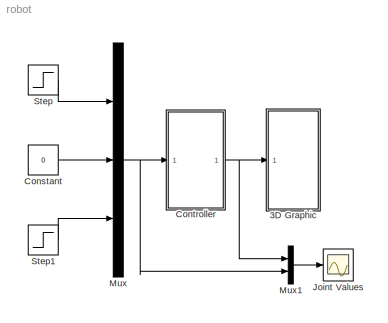
MODEL robot
KIND model
CONFIG InitFcn = Factory
CONFIG PreLoadFcn = Factory
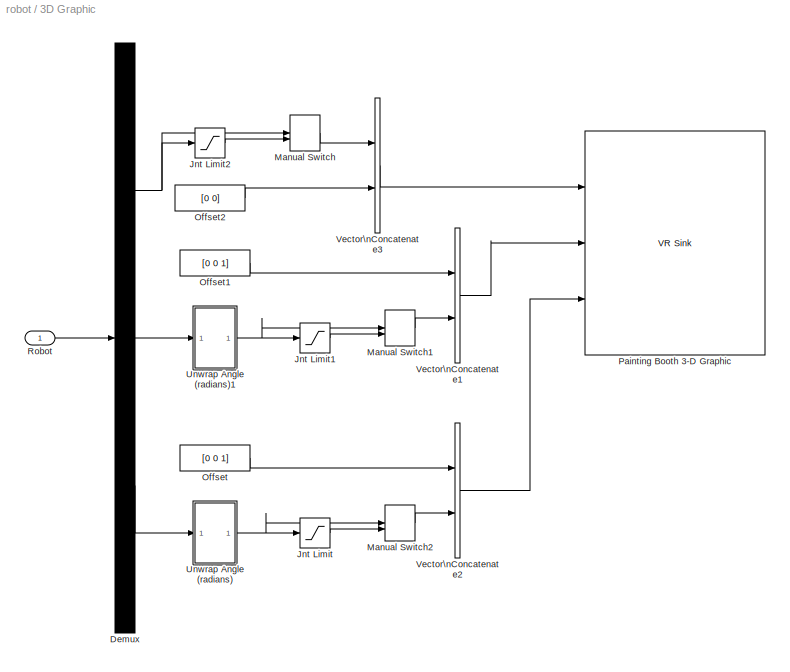
BLOCK [SubSystem] 3D Graphic
  Ports = [1]
  RequestExecContextInheritance = off
  SID = 247
  Variant = off
BLOCK [Demux] 3D Graphic/Demux
  DisplayOption = bar
  Outputs = 3
  Ports = [1, 3]
  SID = 396
BLOCK [Saturate] 3D Graphic/Jnt Limit
  InputPortMap = u0
  LowerLimit = -4*pi/5
  Ports = [1, 1]
  SID = 217
  UpperLimit = 4*pi/5
BLOCK [Saturate] 3D Graphic/Jnt Limit1
  InputPortMap = u0
  LowerLimit = -pi
  Ports = [1, 1]
  SID = 196
  UpperLimit = pi/2
BLOCK [Saturate] 3D Graphic/Jnt Limit2
  InputPortMap = u0
  LowerLimit = -.5
  Ports = [1, 1]
  SID = 187
  UpperLimit = 4.5
BLOCK [ManualSwitch] 3D Graphic/Manual Switch
  CurrentSetting = 0
  SID = 531
BLOCK [ManualSwitch] 3D Graphic/Manual Switch1
  CurrentSetting = 0
  SID = 532
BLOCK [ManualSwitch] 3D Graphic/Manual Switch2
  SID = 533
BLOCK [Constant] 3D Graphic/Offset
  SID = 219
  Value = [0 0 1]
BLOCK [Constant] 3D Graphic/Offset1
  SID = 197
  Value = [0 0 1]
BLOCK [Constant] 3D Graphic/Offset2
  SID = 188
  Value = [0 0]
BLOCK [Reference] 3D Graphic/Painting Booth 3-D Graphic  REF=vrlib/VR Sink
  AllowVariableSize = off
  AutoView = on
  FieldsWritten = Q0.translation.3.1.1.double#Q1.rotation.4.1.1.double#Q2.rotation.4.1.1.double
  InstantiateOnLoad = on
  Ports = [3]
  RemoteChange = off
  RemoteView = off
  SID = 425
  SampleTime = -1
  SourceBlock = vrlib/VR Sink
  SourceType = Virtual Reality Sink
  VideoDimensions = []
  ViewEnable = on
  WorldFileName = ROBOT.WRL
BLOCK [Inport] 3D Graphic/Robot
  IconDisplay = Port number
  SID = 249
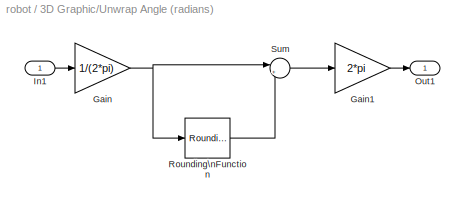
BLOCK [SubSystem] 3D Graphic/Unwrap Angle (radians)
  Ports = [1, 1]
  RequestExecContextInheritance = off
  SID = 222
  Variant = off
BLOCK [Gain] 3D Graphic/Unwrap Angle (radians)/Gain
  Gain = 1/(2*pi)
  OutDataTypeStr = Inherit: Inherit via internal rule
  ParamDataTypeStr = Inherit: Inherit via internal rule
  SID = 224
  SaturateOnIntegerOverflow = off
BLOCK [Gain] 3D Graphic/Unwrap Angle (radians)/Gain1
  Gain = 2*pi
  OutDataTypeStr = Inherit: Inherit via internal rule
  ParamDataTypeStr = Inherit: Inherit via internal rule
  SID = 225
  SaturateOnIntegerOverflow = off
BLOCK [Inport] 3D Graphic/Unwrap Angle (radians)/In1
  IconDisplay = Port number
  SID = 223
BLOCK [Outport] 3D Graphic/Unwrap Angle (radians)/Out1
  IconDisplay = Port number
  SID = 228
BLOCK [Rounding] 3D Graphic/Unwrap Angle (radians)/Rounding\nFunction
  Operator = round
  SID = 226
BLOCK [Sum] 3D Graphic/Unwrap Angle (radians)/Sum
  IconShape = round
  InputSameDT = off
  Inputs = |+-
  OutDataTypeStr = Inherit: Inherit via internal rule
  Ports = [2, 1]
  SID = 227
  SaturateOnIntegerOverflow = off
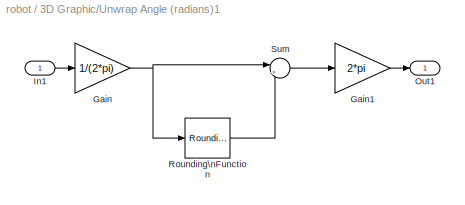
BLOCK [SubSystem] 3D Graphic/Unwrap Angle (radians)1
  Ports = [1, 1]
  RequestExecContextInheritance = off
  SID = 210
  Variant = off
BLOCK [Gain] 3D Graphic/Unwrap Angle (radians)1/Gain
  Gain = 1/(2*pi)
  OutDataTypeStr = Inherit: Inherit via internal rule
  ParamDataTypeStr = Inherit: Inherit via internal rule
  SID = 206
  SaturateOnIntegerOverflow = off
BLOCK [Gain] 3D Graphic/Unwrap Angle (radians)1/Gain1
  Gain = 2*pi
  OutDataTypeStr = Inherit: Inherit via internal rule
  ParamDataTypeStr = Inherit: Inherit via internal rule
  SID = 207
  SaturateOnIntegerOverflow = off
BLOCK [Inport] 3D Graphic/Unwrap Angle (radians)1/In1
  IconDisplay = Port number
  SID = 211
BLOCK [Outport] 3D Graphic/Unwrap Angle (radians)1/Out1
  IconDisplay = Port number
  SID = 212
BLOCK [Rounding] 3D Graphic/Unwrap Angle (radians)1/Rounding\nFunction
  Operator = round
  SID = 208
BLOCK [Sum] 3D Graphic/Unwrap Angle (radians)1/Sum
  IconShape = round
  InputSameDT = off
  Inputs = |+-
  OutDataTypeStr = Inherit: Inherit via internal rule
  Ports = [2, 1]
  SID = 209
  SaturateOnIntegerOverflow = off
BLOCK [Concatenate] 3D Graphic/Vector\nConcatenate1
  Ports = [2, 1]
  SID = 201
BLOCK [Concatenate] 3D Graphic/Vector\nConcatenate2
  Ports = [2, 1]
  SID = 229
BLOCK [Concatenate] 3D Graphic/Vector\nConcatenate3
  Ports = [2, 1]
  SID = 192
BLOCK [Constant] Constant
  SID = 800
  Value = 0
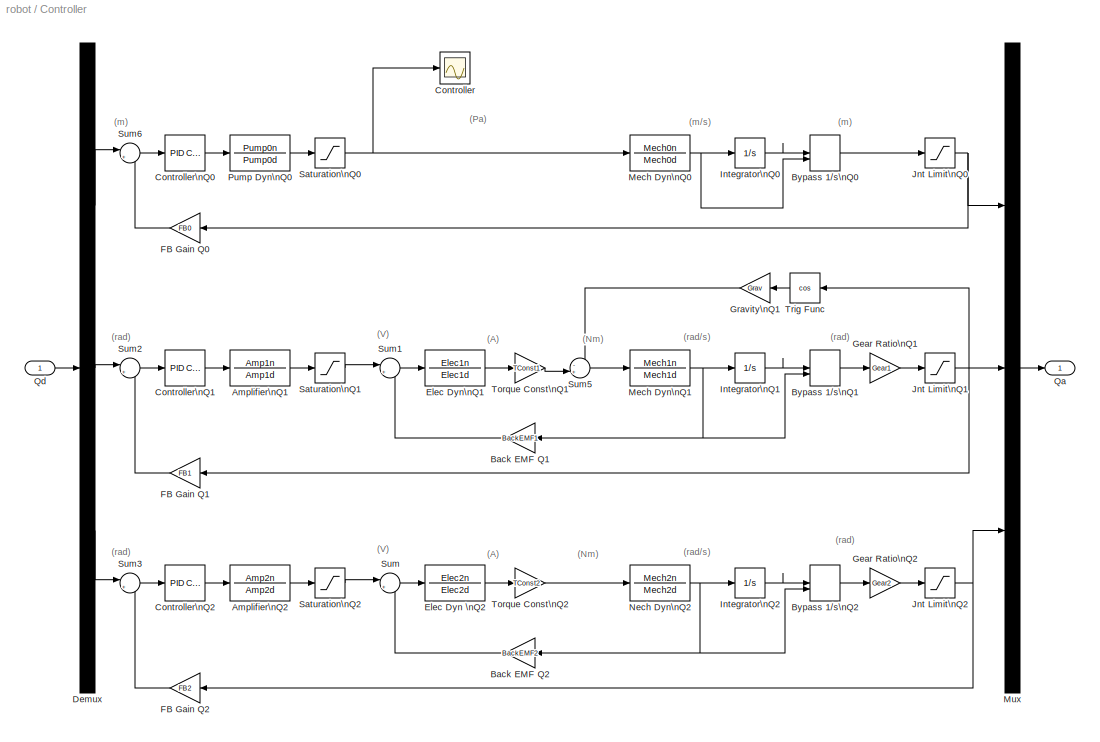
BLOCK [SubSystem] Controller
  Ports = [1, 1]
  RequestExecContextInheritance = off
  SID = 732
  Variant = off
BLOCK [TransferFcn] Controller/Amplifier\nQ1
  Denominator = Amp1d
  Numerator = Amp1n
  SID = 734
BLOCK [TransferFcn] Controller/Amplifier\nQ2
  Denominator = Amp2d
  Numerator = Amp2n
  SID = 735
BLOCK [Gain] Controller/Back EMF Q1
  Gain = BackEMF1
  OutDataTypeStr = Inherit: Inherit via internal rule
  ParamDataTypeStr = Inherit: Inherit via internal rule
  SID = 736
  SaturateOnIntegerOverflow = off
BLOCK [Gain] Controller/Back EMF Q2
  Gain = BackEMF2
  OutDataTypeStr = Inherit: Inherit via internal rule
  ParamDataTypeStr = Inherit: Inherit via internal rule
  SID = 737
  SaturateOnIntegerOverflow = off
BLOCK [ManualSwitch] Controller/Bypass 1//s\nQ0
  CurrentSetting = 0
  SID = 738
BLOCK [ManualSwitch] Controller/Bypass 1//s\nQ1
  CurrentSetting = 0
  SID = 739
BLOCK [ManualSwitch] Controller/Bypass 1//s\nQ2
  CurrentSetting = 0
  SID = 740
BLOCK [Scope] Controller/Controller
  NumInputPorts = 1
  Ports = [1]
  SID = 795
  ScopeSpecificationString = Simulink.scopes.TimeScopeBlockCfg('CurrentConfiguration', extmgr.ConfigurationSet(extmgr.Configuration('Core','General UI',true),extmgr.Configuration('Core','Source UI',true),extmgr.Configuration('Sources','WiredSimulink',true,'DataLoggingLimitDataPoints',true,'DataLoggingSaveFormat','Array','DataLoggingDecimation','1','DataLoggingDecimateData',true),extmgr.Configuration('Visuals','Time Domain',tr...<+1656ch>
BLOCK [Reference] Controller/Controller\nQ0  REF=simulink/Continuous/PID Controller
  AntiWindupMode = none
  Controller = PID
  ControllerParametersSource = internal
  D = 4.63806339848765e-06
  DGainOutDataTypeStr = Inherit: Inherit via internal rule
  DOutDataTypeStr = Inherit: Inherit via internal rule
  DOutMax = []
  DOutMin = []
  DParamDataTypeStr = Inherit: Inherit via internal rule
  DParamMax = []
  DParamMin = []
  DProdOutDataTypeStr = Inherit: Inherit via internal rule
  DifferentiatorICPrevScaledInput = 0
  DifferentiatorOutDataTypeStr = Inherit: Inherit via internal rule
  DifferentiatorOutMax = []
  DifferentiatorOutMin = []
  ExternalReset = none
  FilterContinuousStateAttributes = ''
  FilterMethod = Forward Euler
  FilterOutDataTypeStr = Inherit: Inherit via internal rule
  FilterOutMax = []
  FilterOutMin = []
  FilterRTWStateStorageClass = Auto
  FilterStateMustResolveToSignalObject = off
  Form = Parallel
  I = 5.21868445612407e-09
  IGainOutDataTypeStr = Inherit: Inherit via internal rule
  IOutDataTypeStr = Inherit: Inherit via internal rule
  IOutMax = []
  IOutMin = []
  IParamDataTypeStr = Inherit: Inherit via internal rule
  IParamMax = []
  IParamMin = []
  IProdOutDataTypeStr = Inherit: Inherit via internal rule
  IgnoreLimit = off
  InitialConditionForFilter = 0
  InitialConditionForIntegrator = 0
  InitialConditionSource = internal
  IntegratorContinuousStateAttributes = ''
  IntegratorMethod = Forward Euler
  IntegratorOutDataTypeStr = Inherit: Inherit via internal rule
  IntegratorOutMax = []
  IntegratorOutMin = []
  IntegratorRTWStateStorageClass = Auto
  IntegratorStateMustResolveToSignalObject = off
  Kb = 1
  KbOutDataTypeStr = Inherit: Inherit via internal rule
  KbOutMax = []
  KbOutMin = []
  KbParamDataTypeStr = Inherit: Inherit via internal rule
  KbParamMax = []
  KbParamMin = []
  Kt = 1
  KtOutDataTypeStr = Inherit: Inherit via internal rule
  KtOutMax = []
  KtOutMin = []
  KtParamDataTypeStr = Inherit: Inherit via internal rule
  KtParamMax = []
  KtParamMin = []
  LimitOutput = off
  LinearizeAsGain = on
  LockScale = off
  LowerSaturationLimit = -inf
  N = 0.965872815009672
  NGainOutDataTypeStr = Inherit: Inherit via internal rule
  NOutDataTypeStr = Inherit: Inherit via internal rule
  NOutMax = []
  NOutMin = []
  NParamDataTypeStr = Inherit: Inherit via internal rule
  NParamMax = []
  NParamMin = []
  NProdOutDataTypeStr = Inherit: Inherit via internal rule
  P = 3.26939218896731e-07
  PGainOutDataTypeStr = Inherit: Inherit via internal rule
  POutDataTypeStr = Inherit: Inherit via internal rule
  POutMax = []
  POutMin = []
  PParamDataTypeStr = Inherit: Inherit via internal rule
  PParamMax = []
  PParamMin = []
  PProdOutDataTypeStr = Inherit: Inherit via internal rule
  Ports = [1, 1]
  RndMeth = Floor
  SID = 741
  SampleTime = -1
  SaturateOnIntegerOverflow = off
  SaturationOutDataTypeStr = Inherit: Same as input
  SaturationOutMax = []
  SaturationOutMin = []
  SourceBlock = simulink/Continuous/PID Controller
  SourceType = PID 1dof
  SumAccumDataTypeStr = Inherit: Inherit via internal rule
  SumDAccumDataTypeStr = Inherit: Inherit via internal rule
  SumDOutDataTypeStr = Inherit: Inherit via internal rule
  SumDOutMax = []
  SumDOutMin = []
  SumI1AccumDataTypeStr = Inherit: Inherit via internal rule
  SumI1OutDataTypeStr = Inherit: Inherit via internal rule
  SumI1OutMax = []
  SumI1OutMin = []
  SumI2AccumDataTypeStr = Inherit: Inherit via internal rule
  SumI2OutDataTypeStr = Inherit: Inherit via internal rule
  SumI2OutMax = []
  SumI2OutMin = []
  SumI3AccumDataTypeStr = Inherit: Inherit via internal rule
  SumI3OutDataTypeStr = Inherit: Inherit via internal rule
  SumI3OutMax = []
  SumI3OutMin = []
  SumOutDataTypeStr = Inherit: Inherit via internal rule
  SumOutMax = []
  SumOutMin = []
  TimeDomain = Continuous-time
  TrackingMode = off
  UpperSaturationLimit = inf
  UseFilter = on
  ZeroCross = on
BLOCK [Reference] Controller/Controller\nQ1  REF=simulink/Continuous/PID Controller
  AntiWindupMode = none
  Controller = PID
  ControllerParametersSource = internal
  D = 0.000793238570249178
  DGainOutDataTypeStr = Inherit: Inherit via internal rule
  DOutDataTypeStr = Inherit: Inherit via internal rule
  DOutMax = []
  DOutMin = []
  DParamDataTypeStr = Inherit: Inherit via internal rule
  DParamMax = []
  DParamMin = []
  DProdOutDataTypeStr = Inherit: Inherit via internal rule
  DifferentiatorICPrevScaledInput = 0
  DifferentiatorOutDataTypeStr = Inherit: Inherit via internal rule
  DifferentiatorOutMax = []
  DifferentiatorOutMin = []
  ExternalReset = none
  FilterContinuousStateAttributes = ''
  FilterMethod = Forward Euler
  FilterOutDataTypeStr = Inherit: Inherit via internal rule
  FilterOutMax = []
  FilterOutMin = []
  FilterRTWStateStorageClass = Auto
  FilterStateMustResolveToSignalObject = off
  Form = Parallel
  I = 0.0368251982616527
  IGainOutDataTypeStr = Inherit: Inherit via internal rule
  IOutDataTypeStr = Inherit: Inherit via internal rule
  IOutMax = []
  IOutMin = []
  IParamDataTypeStr = Inherit: Inherit via internal rule
  IParamMax = []
  IParamMin = []
  IProdOutDataTypeStr = Inherit: Inherit via internal rule
  IgnoreLimit = off
  InitialConditionForFilter = 0
  InitialConditionForIntegrator = 0
  InitialConditionSource = internal
  IntegratorContinuousStateAttributes = ''
  IntegratorMethod = Forward Euler
  IntegratorOutDataTypeStr = Inherit: Inherit via internal rule
  IntegratorOutMax = []
  IntegratorOutMin = []
  IntegratorRTWStateStorageClass = Auto
  IntegratorStateMustResolveToSignalObject = off
  Kb = 1
  KbOutDataTypeStr = Inherit: Inherit via internal rule
  KbOutMax = []
  KbOutMin = []
  KbParamDataTypeStr = Inherit: Inherit via internal rule
  KbParamMax = []
  KbParamMin = []
  Kt = 1
  KtOutDataTypeStr = Inherit: Inherit via internal rule
  KtOutMax = []
  KtOutMin = []
  KtParamDataTypeStr = Inherit: Inherit via internal rule
  KtParamMax = []
  KtParamMin = []
  LimitOutput = off
  LinearizeAsGain = on
  LockScale = off
  LowerSaturationLimit = -inf
  N = 63.1412259156694
  NGainOutDataTypeStr = Inherit: Inherit via internal rule
  NOutDataTypeStr = Inherit: Inherit via internal rule
  NOutMax = []
  NOutMin = []
  NParamDataTypeStr = Inherit: Inherit via internal rule
  NParamMax = []
  NParamMin = []
  NProdOutDataTypeStr = Inherit: Inherit via internal rule
  P = 0.0236550094964432
  PGainOutDataTypeStr = Inherit: Inherit via internal rule
  POutDataTypeStr = Inherit: Inherit via internal rule
  POutMax = []
  POutMin = []
  PParamDataTypeStr = Inherit: Inherit via internal rule
  PParamMax = []
  PParamMin = []
  PProdOutDataTypeStr = Inherit: Inherit via internal rule
  Ports = [1, 1]
  RndMeth = Floor
  SID = 742
  SampleTime = -1
  SaturateOnIntegerOverflow = off
  SaturationOutDataTypeStr = Inherit: Same as input
  SaturationOutMax = []
  SaturationOutMin = []
  SourceBlock = simulink/Continuous/PID Controller
  SourceType = PID 1dof
  SumAccumDataTypeStr = Inherit: Inherit via internal rule
  SumDAccumDataTypeStr = Inherit: Inherit via internal rule
  SumDOutDataTypeStr = Inherit: Inherit via internal rule
  SumDOutMax = []
  SumDOutMin = []
  SumI1AccumDataTypeStr = Inherit: Inherit via internal rule
  SumI1OutDataTypeStr = Inherit: Inherit via internal rule
  SumI1OutMax = []
  SumI1OutMin = []
  SumI2AccumDataTypeStr = Inherit: Inherit via internal rule
  SumI2OutDataTypeStr = Inherit: Inherit via internal rule
  SumI2OutMax = []
  SumI2OutMin = []
  SumI3AccumDataTypeStr = Inherit: Inherit via internal rule
  SumI3OutDataTypeStr = Inherit: Inherit via internal rule
  SumI3OutMax = []
  SumI3OutMin = []
  SumOutDataTypeStr = Inherit: Inherit via internal rule
  SumOutMax = []
  SumOutMin = []
  TimeDomain = Continuous-time
  TrackingMode = off
  UpperSaturationLimit = inf
  UseFilter = on
  ZeroCross = on
BLOCK [Reference] Controller/Controller\nQ2  REF=simulink/Continuous/PID Controller
  AntiWindupMode = none
  Controller = PID
  ControllerParametersSource = internal
  D = 0.00389491872834826
  DGainOutDataTypeStr = Inherit: Inherit via internal rule
  DOutDataTypeStr = Inherit: Inherit via internal rule
  DOutMax = []
  DOutMin = []
  DParamDataTypeStr = Inherit: Inherit via internal rule
  DParamMax = []
  DParamMin = []
  DProdOutDataTypeStr = Inherit: Inherit via internal rule
  DifferentiatorICPrevScaledInput = 0
  DifferentiatorOutDataTypeStr = Inherit: Inherit via internal rule
  DifferentiatorOutMax = []
  DifferentiatorOutMin = []
  ExternalReset = none
  FilterContinuousStateAttributes = ''
  FilterMethod = Forward Euler
  FilterOutDataTypeStr = Inherit: Inherit via internal rule
  FilterOutMax = []
  FilterOutMin = []
  FilterRTWStateStorageClass = Auto
  FilterStateMustResolveToSignalObject = off
  Form = Parallel
  I = 6923.75827864066
  IGainOutDataTypeStr = Inherit: Inherit via internal rule
  IOutDataTypeStr = Inherit: Inherit via internal rule
  IOutMax = []
  IOutMin = []
  IParamDataTypeStr = Inherit: Inherit via internal rule
  IParamMax = []
  IParamMin = []
  IProdOutDataTypeStr = Inherit: Inherit via internal rule
  IgnoreLimit = off
  InitialConditionForFilter = 0
  InitialConditionForIntegrator = 0
  InitialConditionSource = internal
  IntegratorContinuousStateAttributes = ''
  IntegratorMethod = Forward Euler
  IntegratorOutDataTypeStr = Inherit: Inherit via internal rule
  IntegratorOutMax = []
  IntegratorOutMin = []
  IntegratorRTWStateStorageClass = Auto
  IntegratorStateMustResolveToSignalObject = off
  Kb = 1
  KbOutDataTypeStr = Inherit: Inherit via internal rule
  KbOutMax = []
  KbOutMin = []
  KbParamDataTypeStr = Inherit: Inherit via internal rule
  KbParamMax = []
  KbParamMin = []
  Kt = 1
  KtOutDataTypeStr = Inherit: Inherit via internal rule
  KtOutMax = []
  KtOutMin = []
  KtParamDataTypeStr = Inherit: Inherit via internal rule
  KtParamMax = []
  KtParamMin = []
  LimitOutput = off
  LinearizeAsGain = on
  LockScale = off
  LowerSaturationLimit = -inf
  N = 157569.922868669
  NGainOutDataTypeStr = Inherit: Inherit via internal rule
  NOutDataTypeStr = Inherit: Inherit via internal rule
  NOutMax = []
  NOutMin = []
  NParamDataTypeStr = Inherit: Inherit via internal rule
  NParamMax = []
  NParamMin = []
  NProdOutDataTypeStr = Inherit: Inherit via internal rule
  P = 10.4637095336481
  PGainOutDataTypeStr = Inherit: Inherit via internal rule
  POutDataTypeStr = Inherit: Inherit via internal rule
  POutMax = []
  POutMin = []
  PParamDataTypeStr = Inherit: Inherit via internal rule
  PParamMax = []
  PParamMin = []
  PProdOutDataTypeStr = Inherit: Inherit via internal rule
  Ports = [1, 1]
  RndMeth = Floor
  SID = 743
  SampleTime = -1
  SaturateOnIntegerOverflow = off
  SaturationOutDataTypeStr = Inherit: Same as input
  SaturationOutMax = []
  SaturationOutMin = []
  SourceBlock = simulink/Continuous/PID Controller
  SourceType = PID 1dof
  SumAccumDataTypeStr = Inherit: Inherit via internal rule
  SumDAccumDataTypeStr = Inherit: Inherit via internal rule
  SumDOutDataTypeStr = Inherit: Inherit via internal rule
  SumDOutMax = []
  SumDOutMin = []
  SumI1AccumDataTypeStr = Inherit: Inherit via internal rule
  SumI1OutDataTypeStr = Inherit: Inherit via internal rule
  SumI1OutMax = []
  SumI1OutMin = []
  SumI2AccumDataTypeStr = Inherit: Inherit via internal rule
  SumI2OutDataTypeStr = Inherit: Inherit via internal rule
  SumI2OutMax = []
  SumI2OutMin = []
  SumI3AccumDataTypeStr = Inherit: Inherit via internal rule
  SumI3OutDataTypeStr = Inherit: Inherit via internal rule
  SumI3OutMax = []
  SumI3OutMin = []
  SumOutDataTypeStr = Inherit: Inherit via internal rule
  SumOutMax = []
  SumOutMin = []
  TimeDomain = Continuous-time
  TrackingMode = off
  UpperSaturationLimit = inf
  UseFilter = on
  ZeroCross = on
BLOCK [Demux] Controller/Demux
  DisplayOption = bar
  Outputs = 3
  Ports = [1, 3]
  SID = 744
BLOCK [TransferFcn] Controller/Elec Dyn \nQ2
  Denominator = Elec2d
  Numerator = Elec2n
  SID = 746
BLOCK [TransferFcn] Controller/Elec Dyn\nQ1
  Denominator = Elec1d
  Numerator = Elec1n
  SID = 745
BLOCK [Gain] Controller/FB Gain Q0
  Gain = FB0
  OutDataTypeStr = Inherit: Inherit via internal rule
  ParamDataTypeStr = Inherit: Inherit via internal rule
  SID = 747
  SaturateOnIntegerOverflow = off
BLOCK [Gain] Controller/FB Gain Q1
  Gain = FB1
  OutDataTypeStr = Inherit: Inherit via internal rule
  ParamDataTypeStr = Inherit: Inherit via internal rule
  SID = 748
  SaturateOnIntegerOverflow = off
BLOCK [Gain] Controller/FB Gain Q2
  Gain = FB2
  OutDataTypeStr = Inherit: Inherit via internal rule
  ParamDataTypeStr = Inherit: Inherit via internal rule
  SID = 749
  SaturateOnIntegerOverflow = off
BLOCK [Gain] Controller/Gear Ratio\nQ1
  Gain = Gear1
  OutDataTypeStr = Inherit: Inherit via internal rule
  ParamDataTypeStr = Inherit: Inherit via internal rule
  SID = 750
  SaturateOnIntegerOverflow = off
BLOCK [Gain] Controller/Gear Ratio\nQ2
  Gain = Gear2
  OutDataTypeStr = Inherit: Inherit via internal rule
  ParamDataTypeStr = Inherit: Inherit via internal rule
  SID = 751
  SaturateOnIntegerOverflow = off
BLOCK [Gain] Controller/Gravity\nQ1
  Gain = Grav
  OutDataTypeStr = Inherit: Inherit via internal rule
  ParamDataTypeStr = Inherit: Inherit via internal rule
  SID = 752
  SaturateOnIntegerOverflow = off
BLOCK [Integrator] Controller/Integrator\nQ0
  Ports = [1, 1]
  SID = 753
BLOCK [Integrator] Controller/Integrator\nQ1
  InitialCondition = -pi/2*GR1
  Ports = [1, 1]
  SID = 754
BLOCK [Integrator] Controller/Integrator\nQ2
  InitialCondition = pi/2*GR2
  Ports = [1, 1]
  SID = 755
BLOCK [Saturate] Controller/Jnt Limit\nQ0
  InputPortMap = u0
  LowerLimit = JntMin0
  Ports = [1, 1]
  SID = 756
  UpperLimit = JntMax0
BLOCK [Saturate] Controller/Jnt Limit\nQ1
  InputPortMap = u0
  LowerLimit = JntMin1
  Ports = [1, 1]
  SID = 757
  UpperLimit = JntMax1
BLOCK [Saturate] Controller/Jnt Limit\nQ2
  InputPortMap = u0
  LowerLimit = JntMin2
  Ports = [1, 1]
  SID = 758
  UpperLimit = JntMax2
BLOCK [TransferFcn] Controller/Mech Dyn\nQ0
  Denominator = Mech0d
  Numerator = Mech0n
  SID = 759
BLOCK [TransferFcn] Controller/Mech Dyn\nQ1
  Denominator = Mech1d
  Numerator = Mech1n
  SID = 760
BLOCK [Mux] Controller/Mux
  DisplayOption = bar
  Inputs = 3
  Ports = [3, 1]
  SID = 761
BLOCK [TransferFcn] Controller/Nech Dyn\nQ2
  Denominator = Mech2d
  Numerator = Mech2n
  SID = 762
BLOCK [TransferFcn] Controller/Pump Dyn\nQ0
  Denominator = Pump0d
  Numerator = Pump0n
  SID = 763
BLOCK [Outport] Controller/Qa
  IconDisplay = Port number
  SID = 777
BLOCK [Inport] Controller/Qd
  IconDisplay = Port number
  SID = 733
BLOCK [Saturate] Controller/Saturation\nQ0
  InputPortMap = u0
  LowerLimit = -Pump0sat
  Ports = [1, 1]
  SID = 764
  UpperLimit = Pump0sat
BLOCK [Saturate] Controller/Saturation\nQ1
  InputPortMap = u0
  LowerLimit = -AmpSat1
  Ports = [1, 1]
  SID = 765
  UpperLimit = AmpSat1
BLOCK [Saturate] Controller/Saturation\nQ2
  InputPortMap = u0
  LowerLimit = -AmpSat2
  Ports = [1, 1]
  SID = 766
  UpperLimit = AmpSat2
BLOCK [Sum] Controller/Sum
  IconShape = round
  InputSameDT = off
  Inputs = |+-
  OutDataTypeStr = Inherit: Inherit via internal rule
  Ports = [2, 1]
  SID = 768
  SaturateOnIntegerOverflow = off
BLOCK [Sum] Controller/Sum1
  IconShape = round
  InputSameDT = off
  Inputs = |+-
  OutDataTypeStr = Inherit: Inherit via internal rule
  Ports = [2, 1]
  SID = 769
  SaturateOnIntegerOverflow = off
BLOCK [Sum] Controller/Sum2
  IconShape = round
  InputSameDT = off
  Inputs = |+-
  OutDataTypeStr = Inherit: Inherit via internal rule
  Ports = [2, 1]
  SID = 770
  SaturateOnIntegerOverflow = off
BLOCK [Sum] Controller/Sum3
  IconShape = round
  InputSameDT = off
  Inputs = |+-
  OutDataTypeStr = Inherit: Inherit via internal rule
  Ports = [2, 1]
  SID = 771
  SaturateOnIntegerOverflow = off
BLOCK [Sum] Controller/Sum5
  IconShape = round
  InputSameDT = off
  Inputs = -+|
  OutDataTypeStr = Inherit: Inherit via internal rule
  Ports = [2, 1]
  SID = 772
  SaturateOnIntegerOverflow = off
BLOCK [Sum] Controller/Sum6
  IconShape = round
  InputSameDT = off
  Inputs = |+-
  OutDataTypeStr = Inherit: Inherit via internal rule
  Ports = [2, 1]
  SID = 773
  SaturateOnIntegerOverflow = off
BLOCK [Gain] Controller/Torque Const\nQ1
  Gain = TConst1
  OutDataTypeStr = Inherit: Inherit via internal rule
  ParamDataTypeStr = Inherit: Inherit via internal rule
  SID = 774
  SaturateOnIntegerOverflow = off
BLOCK [Gain] Controller/Torque Const\nQ2
  Gain = TConst2
  OutDataTypeStr = Inherit: Inherit via internal rule
  ParamDataTypeStr = Inherit: Inherit via internal rule
  SID = 775
  SaturateOnIntegerOverflow = off
BLOCK [Trigonometry] Controller/Trig Func
  Operator = cos
  Ports = [1, 1]
  SID = 776
BLOCK [Scope] Joint Values
  NumInputPorts = 1
  Ports = [1]
  SID = 542
  ScopeSpecificationString = Simulink.scopes.TimeScopeBlockCfg('CurrentConfiguration', extmgr.ConfigurationSet(extmgr.Configuration('Core','General UI',true),extmgr.Configuration('Core','Source UI',true),extmgr.Configuration('Sources','WiredSimulink',true,'DataLoggingVariableName','ScopeData2','DataLoggingLimitDataPoints',true,'DataLoggingSaveFormat','Array','DataLoggingDecimation','1','DataLoggingDecimateData',true),extmgr.C...<+1725ch>
BLOCK [Mux] Mux
  DisplayOption = bar
  Inputs = 3
  Ports = [3, 1]
  SID = 393
BLOCK [Mux] Mux1
  DisplayOption = bar
  Inputs = 2
  Ports = [2, 1]
  SID = 543
BLOCK [Step] Step
  SID = 528
  SampleTime = 0
BLOCK [Step] Step1
  After = 0
  Before = pi/2
  SID = 794
  SampleTime = 0
  Time = .5
ANNOTATION Controller: (A)
ANNOTATION Controller: (Nm)
ANNOTATION Controller: (Pa)
ANNOTATION Controller: (V)
ANNOTATION Controller: (m)
ANNOTATION Controller: (m/s)
ANNOTATION Controller: (rad)
ANNOTATION Controller: (rad/s)
NET 3D Graphic/Demux:1 -> 3D Graphic/Jnt Limit2:1, 3D Graphic/Manual Switch:1
LINE 3D Graphic/Demux:2 -> 3D Graphic/Unwrap Angle (radians)1:1
LINE 3D Graphic/Demux:3 -> 3D Graphic/Unwrap Angle (radians):1
LINE 3D Graphic/Jnt Limit1:1 -> 3D Graphic/Manual Switch1:2
LINE 3D Graphic/Jnt Limit2:1 -> 3D Graphic/Manual Switch:2
LINE 3D Graphic/Jnt Limit:1 -> 3D Graphic/Manual Switch2:2
LINE 3D Graphic/Manual Switch1:1 -> 3D Graphic/Vector\nConcatenate1:2
LINE 3D Graphic/Manual Switch2:1 -> 3D Graphic/Vector\nConcatenate2:2
LINE 3D Graphic/Manual Switch:1 -> 3D Graphic/Vector\nConcatenate3:1
LINE 3D Graphic/Offset1:1 -> 3D Graphic/Vector\nConcatenate1:1
LINE 3D Graphic/Offset2:1 -> 3D Graphic/Vector\nConcatenate3:2
LINE 3D Graphic/Offset:1 -> 3D Graphic/Vector\nConcatenate2:1
LINE 3D Graphic/Robot:1 -> 3D Graphic/Demux:1
LINE 3D Graphic/Unwrap Angle (radians)/Gain1:1 -> 3D Graphic/Unwrap Angle (radians)/Out1:1
NET 3D Graphic/Unwrap Angle (radians)/Gain:1 -> 3D Graphic/Unwrap Angle (radians)/Rounding\nFunction:1, 3D Graphic/Unwrap Angle (radians)/Sum:1
LINE 3D Graphic/Unwrap Angle (radians)/In1:1 -> 3D Graphic/Unwrap Angle (radians)/Gain:1
LINE 3D Graphic/Unwrap Angle (radians)/Rounding\nFunction:1 -> 3D Graphic/Unwrap Angle (radians)/Sum:2
LINE 3D Graphic/Unwrap Angle (radians)/Sum:1 -> 3D Graphic/Unwrap Angle (radians)/Gain1:1
LINE 3D Graphic/Unwrap Angle (radians)1/Gain1:1 -> 3D Graphic/Unwrap Angle (radians)1/Out1:1
NET 3D Graphic/Unwrap Angle (radians)1/Gain:1 -> 3D Graphic/Unwrap Angle (radians)1/Rounding\nFunction:1, 3D Graphic/Unwrap Angle (radians)1/Sum:1
LINE 3D Graphic/Unwrap Angle (radians)1/In1:1 -> 3D Graphic/Unwrap Angle (radians)1/Gain:1
LINE 3D Graphic/Unwrap Angle (radians)1/Rounding\nFunction:1 -> 3D Graphic/Unwrap Angle (radians)1/Sum:2
LINE 3D Graphic/Unwrap Angle (radians)1/Sum:1 -> 3D Graphic/Unwrap Angle (radians)1/Gain1:1
NET 3D Graphic/Unwrap Angle (radians)1:1 -> 3D Graphic/Jnt Limit1:1, 3D Graphic/Manual Switch1:1
NET 3D Graphic/Unwrap Angle (radians):1 -> 3D Graphic/Jnt Limit:1, 3D Graphic/Manual Switch2:1
LINE 3D Graphic/Vector\nConcatenate1:1 -> 3D Graphic/Painting Booth 3-D Graphic:2
LINE 3D Graphic/Vector\nConcatenate2:1 -> 3D Graphic/Painting Booth 3-D Graphic:3
LINE 3D Graphic/Vector\nConcatenate3:1 -> 3D Graphic/Painting Booth 3-D Graphic:1
LINE Constant:1 -> Mux:2
LINE Controller/Amplifier\nQ1:1 -> Controller/Saturation\nQ1:1
LINE Controller/Amplifier\nQ2:1 -> Controller/Saturation\nQ2:1
LINE Controller/Back EMF Q1:1 -> Controller/Sum1:2
LINE Controller/Back EMF Q2:1 -> Controller/Sum:2
LINE Controller/Bypass 1//s\nQ0:1 -> Controller/Jnt Limit\nQ0:1
LINE Controller/Bypass 1//s\nQ1:1 -> Controller/Gear Ratio\nQ1:1
LINE Controller/Bypass 1//s\nQ2:1 -> Controller/Gear Ratio\nQ2:1
LINE Controller/Controller\nQ0:1 -> Controller/Pump Dyn\nQ0:1
LINE Controller/Controller\nQ1:1 -> Controller/Amplifier\nQ1:1
LINE Controller/Controller\nQ2:1 -> Controller/Amplifier\nQ2:1
LINE Controller/Demux:1 -> Controller/Sum6:1
LINE Controller/Demux:2 -> Controller/Sum2:1
LINE Controller/Demux:3 -> Controller/Sum3:1
LINE Controller/Elec Dyn \nQ2:1 -> Controller/Torque Const\nQ2:1
LINE Controller/Elec Dyn\nQ1:1 -> Controller/Torque Const\nQ1:1
LINE Controller/FB Gain Q0:1 -> Controller/Sum6:2
LINE Controller/FB Gain Q1:1 -> Controller/Sum2:2
LINE Controller/FB Gain Q2:1 -> Controller/Sum3:2
LINE Controller/Gear Ratio\nQ1:1 -> Controller/Jnt Limit\nQ1:1
LINE Controller/Gear Ratio\nQ2:1 -> Controller/Jnt Limit\nQ2:1
LINE Controller/Gravity\nQ1:1 -> Controller/Sum5:1
LINE Controller/Integrator\nQ0:1 -> Controller/Bypass 1//s\nQ0:1
LINE Controller/Integrator\nQ1:1 -> Controller/Bypass 1//s\nQ1:1
LINE Controller/Integrator\nQ2:1 -> Controller/Bypass 1//s\nQ2:1
NET Controller/Jnt Limit\nQ0:1 -> Controller/FB Gain Q0:1, Controller/Mux:1
NET Controller/Jnt Limit\nQ1:1 -> Controller/FB Gain Q1:1, Controller/Mux:2, Controller/Trig Func:1
NET Controller/Jnt Limit\nQ2:1 -> Controller/FB Gain Q2:1, Controller/Mux:3
NET Controller/Mech Dyn\nQ0:1 -> Controller/Bypass 1//s\nQ0:2, Controller/Integrator\nQ0:1
NET Controller/Mech Dyn\nQ1:1 -> Controller/Back EMF Q1:1, Controller/Bypass 1//s\nQ1:2, Controller/Integrator\nQ1:1
LINE Controller/Mux:1 -> Controller/Qa:1
NET Controller/Nech Dyn\nQ2:1 -> Controller/Back EMF Q2:1, Controller/Bypass 1//s\nQ2:2, Controller/Integrator\nQ2:1
LINE Controller/Pump Dyn\nQ0:1 -> Controller/Saturation\nQ0:1
LINE Controller/Qd:1 -> Controller/Demux:1
NET Controller/Saturation\nQ0:1 -> Controller/Controller:1, Controller/Mech Dyn\nQ0:1
LINE Controller/Saturation\nQ1:1 -> Controller/Sum1:1
LINE Controller/Saturation\nQ2:1 -> Controller/Sum:1
LINE Controller/Sum1:1 -> Controller/Elec Dyn\nQ1:1
LINE Controller/Sum2:1 -> Controller/Controller\nQ1:1
LINE Controller/Sum3:1 -> Controller/Controller\nQ2:1
LINE Controller/Sum5:1 -> Controller/Mech Dyn\nQ1:1
LINE Controller/Sum6:1 -> Controller/Controller\nQ0:1
LINE Controller/Sum:1 -> Controller/Elec Dyn \nQ2:1
LINE Controller/Torque Const\nQ1:1 -> Controller/Sum5:2
LINE Controller/Torque Const\nQ2:1 -> Controller/Nech Dyn\nQ2:1
LINE Controller/Trig Func:1 -> Controller/Gravity\nQ1:1
NET Controller:1 -> 3D Graphic:1, Mux1:1
LINE Mux1:1 -> Joint Values:1
NET Mux:1 -> Controller:1, Mux1:2
LINE Step1:1 -> Mux:3
LINE Step:1 -> Mux:1
note: NET lines group one-source signal fan-out (src -> all destinations, sorted); 1:1 wires keep LINE
